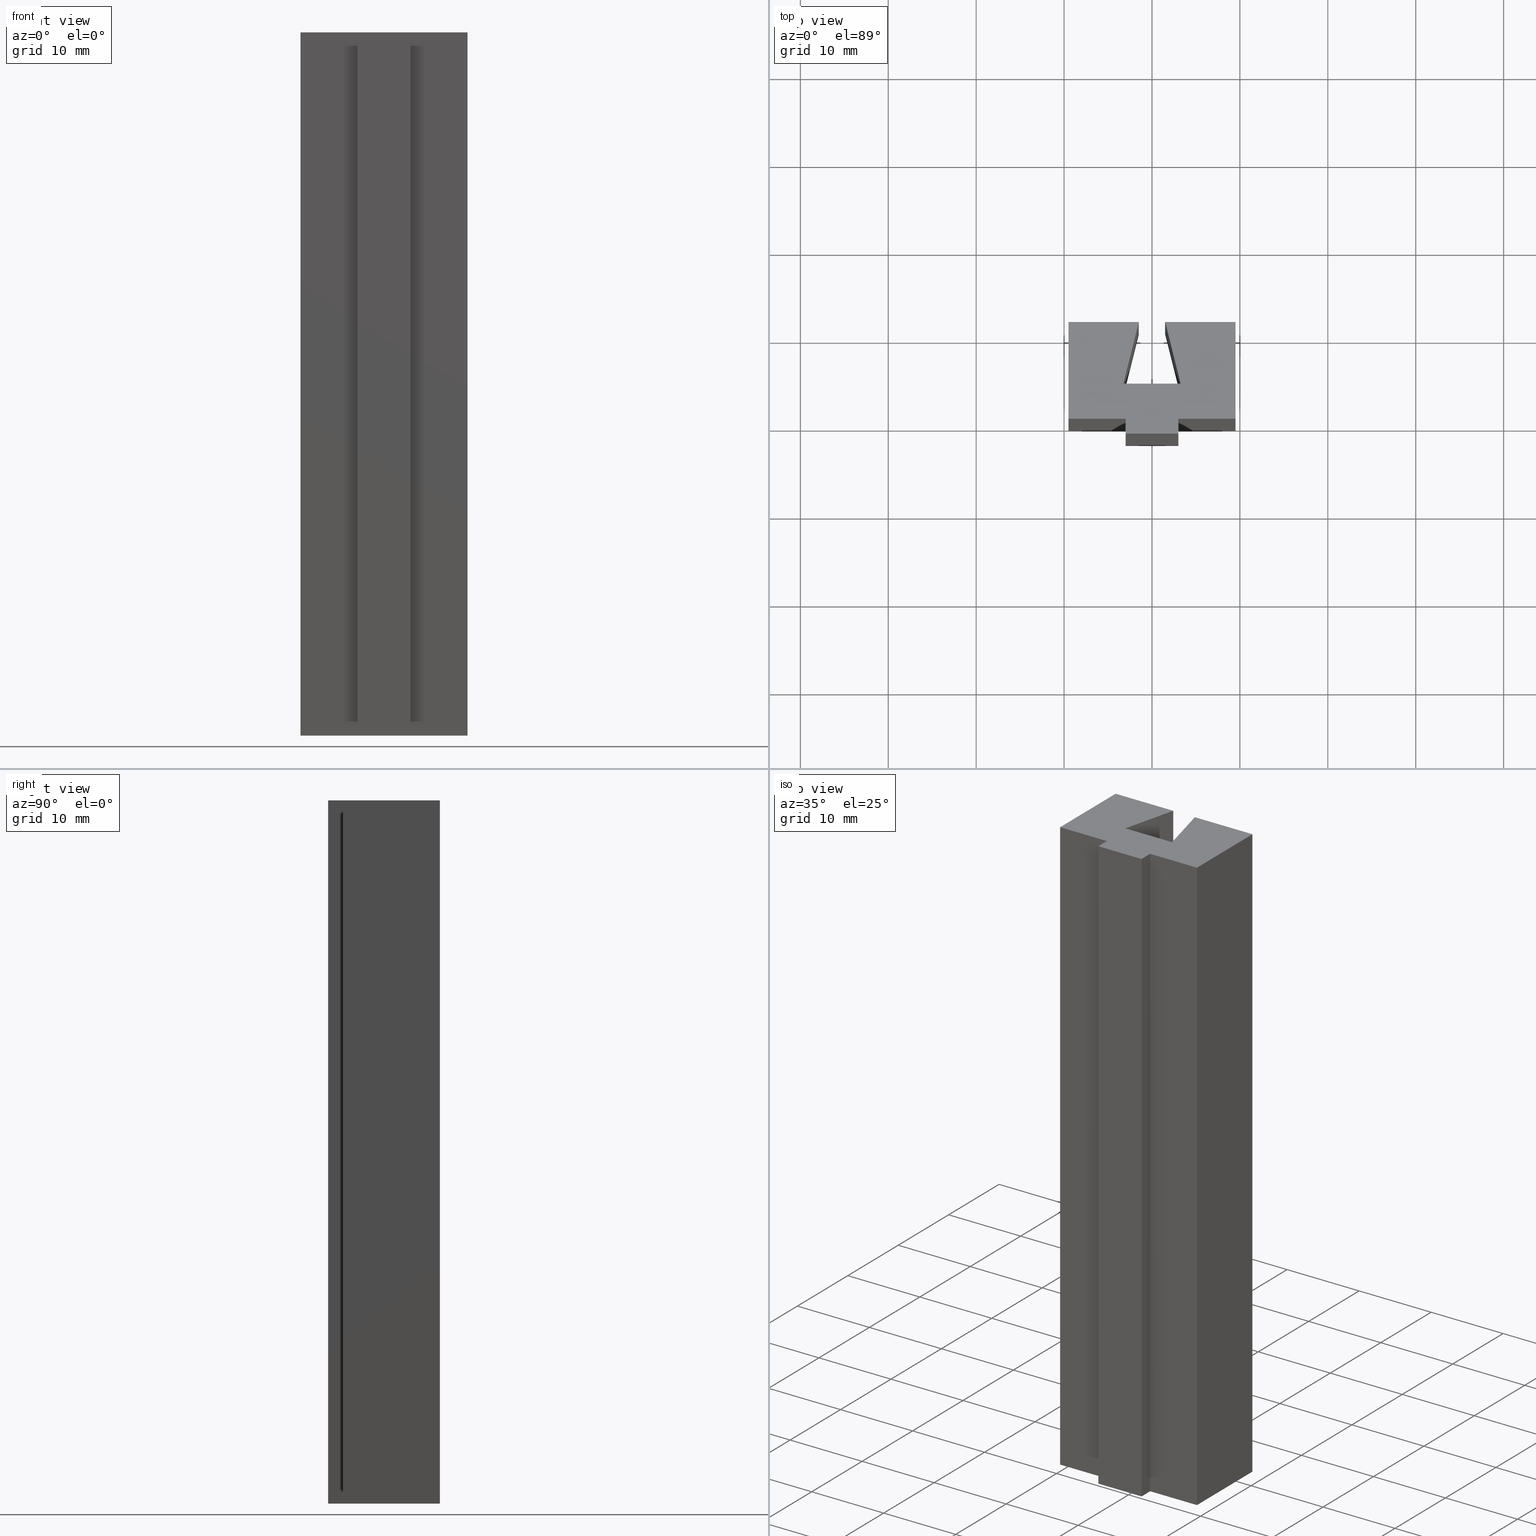
[diagram: canonical four-view strip — front | top / right | iso, engineering-drawing reading convention]
A machine part, canonical four-view strip (front | top / right | iso — engineering-drawing reading convention). The complete STEP part file that produces these views, byte-faithful:
ISO-10303-21;
HEADER;
/* Generated by software containing ST-Developer
 * from STEP Tools, Inc. (www.steptools.com) 
 */

FILE_DESCRIPTION(
/* description */ (''),
/* implementation_level */ '2;1');

FILE_NAME(
/* name */ 'E_3_01_10_07_00_WKZ-0135.stp',
/* time_stamp */ '2025-11-24T11:51:56+01:00',
/* author */ ('d.fischer'),
/* organization */ (''),
/* preprocessor_version */ 'ST-DEVELOPER v20',
/* originating_system */ 'Autodesk Inventor 2025',
/* authorisation */ '');

FILE_SCHEMA (('AUTOMOTIVE_DESIGN { 1 0 10303 214 3 1 1 }'));
ENDSEC;

DATA;
#10=MECHANICAL_DESIGN_GEOMETRIC_PRESENTATION_REPRESENTATION('',(#14,#15),
#457);
#11=SHAPE_REPRESENTATION_RELATIONSHIP('SRR','None',#464,#12);
#12=ADVANCED_BREP_SHAPE_REPRESENTATION('',(#13),#456);
#13=MANIFOLD_SOLID_BREP('Volumenk\X\F6rper1',#276);
#14=STYLED_ITEM('',(#474),#264);
#15=STYLED_ITEM('',(#473),#13);
#16=FACE_OUTER_BOUND('',#30,.T.);
#17=FACE_OUTER_BOUND('',#31,.T.);
#18=FACE_OUTER_BOUND('',#32,.T.);
#19=FACE_OUTER_BOUND('',#33,.T.);
#20=FACE_OUTER_BOUND('',#34,.T.);
#21=FACE_OUTER_BOUND('',#35,.T.);
#22=FACE_OUTER_BOUND('',#36,.T.);
#23=FACE_OUTER_BOUND('',#37,.T.);
#24=FACE_OUTER_BOUND('',#38,.T.);
#25=FACE_OUTER_BOUND('',#39,.T.);
#26=FACE_OUTER_BOUND('',#40,.T.);
#27=FACE_OUTER_BOUND('',#41,.T.);
#28=FACE_OUTER_BOUND('',#42,.T.);
#29=FACE_OUTER_BOUND('',#43,.T.);
#30=EDGE_LOOP('',(#176,#177,#178,#179,#180,#181,#182,#183,#184,#185,#186,
#187));
#31=EDGE_LOOP('',(#188,#189,#190,#191));
#32=EDGE_LOOP('',(#192,#193,#194,#195));
#33=EDGE_LOOP('',(#196,#197,#198,#199));
#34=EDGE_LOOP('',(#200,#201,#202,#203));
#35=EDGE_LOOP('',(#204,#205,#206,#207));
#36=EDGE_LOOP('',(#208,#209,#210,#211));
#37=EDGE_LOOP('',(#212,#213,#214,#215));
#38=EDGE_LOOP('',(#216,#217,#218,#219));
#39=EDGE_LOOP('',(#220,#221,#222,#223));
#40=EDGE_LOOP('',(#224,#225,#226,#227));
#41=EDGE_LOOP('',(#228,#229,#230,#231));
#42=EDGE_LOOP('',(#232,#233,#234,#235));
#43=EDGE_LOOP('',(#236,#237,#238,#239,#240,#241,#242,#243,#244,#245,#246,
#247));
#44=LINE('',#383,#80);
#45=LINE('',#385,#81);
#46=LINE('',#387,#82);
#47=LINE('',#389,#83);
#48=LINE('',#391,#84);
#49=LINE('',#393,#85);
#50=LINE('',#395,#86);
#51=LINE('',#397,#87);
#52=LINE('',#399,#88);
#53=LINE('',#401,#89);
#54=LINE('',#403,#90);
#55=LINE('',#404,#91);
#56=LINE('',#408,#92);
#57=LINE('',#409,#93);
#58=LINE('',#410,#94);
#59=LINE('',#413,#95);
#60=LINE('',#414,#96);
#61=LINE('',#417,#97);
#62=LINE('',#418,#98);
#63=LINE('',#421,#99);
#64=LINE('',#422,#100);
#65=LINE('',#425,#101);
#66=LINE('',#426,#102);
#67=LINE('',#429,#103);
#68=LINE('',#430,#104);
#69=LINE('',#433,#105);
#70=LINE('',#434,#106);
#71=LINE('',#437,#107);
#72=LINE('',#438,#108);
#73=LINE('',#441,#109);
#74=LINE('',#442,#110);
#75=LINE('',#445,#111);
#76=LINE('',#446,#112);
#77=LINE('',#449,#113);
#78=LINE('',#450,#114);
#79=LINE('',#452,#115);
#80=VECTOR('',#317,10.);
#81=VECTOR('',#318,10.);
#82=VECTOR('',#319,10.);
#83=VECTOR('',#320,10.);
#84=VECTOR('',#321,10.);
#85=VECTOR('',#322,10.);
#86=VECTOR('',#323,10.);
#87=VECTOR('',#324,10.);
#88=VECTOR('',#325,10.);
#89=VECTOR('',#326,10.);
#90=VECTOR('',#327,10.);
#91=VECTOR('',#328,10.);
#92=VECTOR('',#331,10.);
#93=VECTOR('',#332,10.);
#94=VECTOR('',#333,10.);
#95=VECTOR('',#336,10.);
#96=VECTOR('',#337,10.);
#97=VECTOR('',#340,10.);
#98=VECTOR('',#341,10.);
#99=VECTOR('',#344,10.);
#100=VECTOR('',#345,10.);
#101=VECTOR('',#348,10.);
#102=VECTOR('',#349,10.);
#103=VECTOR('',#352,10.);
#104=VECTOR('',#353,10.);
#105=VECTOR('',#356,10.);
#106=VECTOR('',#357,10.);
#107=VECTOR('',#360,10.);
#108=VECTOR('',#361,10.);
#109=VECTOR('',#364,10.);
#110=VECTOR('',#365,10.);
#111=VECTOR('',#368,10.);
#112=VECTOR('',#369,10.);
#113=VECTOR('',#372,10.);
#114=VECTOR('',#373,10.);
#115=VECTOR('',#376,10.);
#116=VERTEX_POINT('',#381);
#117=VERTEX_POINT('',#382);
#118=VERTEX_POINT('',#384);
#119=VERTEX_POINT('',#386);
#120=VERTEX_POINT('',#388);
#121=VERTEX_POINT('',#390);
#122=VERTEX_POINT('',#392);
#123=VERTEX_POINT('',#394);
#124=VERTEX_POINT('',#396);
#125=VERTEX_POINT('',#398);
#126=VERTEX_POINT('',#400);
#127=VERTEX_POINT('',#402);
#128=VERTEX_POINT('',#406);
#129=VERTEX_POINT('',#407);
#130=VERTEX_POINT('',#412);
#131=VERTEX_POINT('',#416);
#132=VERTEX_POINT('',#420);
#133=VERTEX_POINT('',#424);
#134=VERTEX_POINT('',#428);
#135=VERTEX_POINT('',#432);
#136=VERTEX_POINT('',#436);
#137=VERTEX_POINT('',#440);
#138=VERTEX_POINT('',#444);
#139=VERTEX_POINT('',#448);
#140=EDGE_CURVE('',#116,#117,#44,.T.);
#141=EDGE_CURVE('',#118,#116,#45,.T.);
#142=EDGE_CURVE('',#119,#118,#46,.T.);
#143=EDGE_CURVE('',#120,#119,#47,.T.);
#144=EDGE_CURVE('',#121,#120,#48,.T.);
#145=EDGE_CURVE('',#122,#121,#49,.T.);
#146=EDGE_CURVE('',#123,#122,#50,.T.);
#147=EDGE_CURVE('',#124,#123,#51,.T.);
#148=EDGE_CURVE('',#125,#124,#52,.T.);
#149=EDGE_CURVE('',#126,#125,#53,.T.);
#150=EDGE_CURVE('',#127,#126,#54,.T.);
#151=EDGE_CURVE('',#117,#127,#55,.T.);
#152=EDGE_CURVE('',#128,#129,#56,.T.);
#153=EDGE_CURVE('',#129,#119,#57,.T.);
#154=EDGE_CURVE('',#128,#118,#58,.T.);
#155=EDGE_CURVE('',#129,#130,#59,.T.);
#156=EDGE_CURVE('',#130,#120,#60,.T.);
#157=EDGE_CURVE('',#130,#131,#61,.T.);
#158=EDGE_CURVE('',#131,#121,#62,.T.);
#159=EDGE_CURVE('',#131,#132,#63,.T.);
#160=EDGE_CURVE('',#132,#122,#64,.T.);
#161=EDGE_CURVE('',#132,#133,#65,.T.);
#162=EDGE_CURVE('',#133,#123,#66,.T.);
#163=EDGE_CURVE('',#133,#134,#67,.T.);
#164=EDGE_CURVE('',#134,#124,#68,.T.);
#165=EDGE_CURVE('',#134,#135,#69,.T.);
#166=EDGE_CURVE('',#135,#125,#70,.T.);
#167=EDGE_CURVE('',#135,#136,#71,.T.);
#168=EDGE_CURVE('',#136,#126,#72,.T.);
#169=EDGE_CURVE('',#136,#137,#73,.T.);
#170=EDGE_CURVE('',#137,#127,#74,.T.);
#171=EDGE_CURVE('',#137,#138,#75,.T.);
#172=EDGE_CURVE('',#138,#117,#76,.T.);
#173=EDGE_CURVE('',#138,#139,#77,.T.);
#174=EDGE_CURVE('',#116,#139,#78,.T.);
#175=EDGE_CURVE('',#139,#128,#79,.T.);
#176=ORIENTED_EDGE('',*,*,#140,.F.);
#177=ORIENTED_EDGE('',*,*,#141,.F.);
#178=ORIENTED_EDGE('',*,*,#142,.F.);
#179=ORIENTED_EDGE('',*,*,#143,.F.);
#180=ORIENTED_EDGE('',*,*,#144,.F.);
#181=ORIENTED_EDGE('',*,*,#145,.F.);
#182=ORIENTED_EDGE('',*,*,#146,.F.);
#183=ORIENTED_EDGE('',*,*,#147,.F.);
#184=ORIENTED_EDGE('',*,*,#148,.F.);
#185=ORIENTED_EDGE('',*,*,#149,.F.);
#186=ORIENTED_EDGE('',*,*,#150,.F.);
#187=ORIENTED_EDGE('',*,*,#151,.F.);
#188=ORIENTED_EDGE('',*,*,#152,.T.);
#189=ORIENTED_EDGE('',*,*,#153,.T.);
#190=ORIENTED_EDGE('',*,*,#142,.T.);
#191=ORIENTED_EDGE('',*,*,#154,.F.);
#192=ORIENTED_EDGE('',*,*,#155,.T.);
#193=ORIENTED_EDGE('',*,*,#156,.T.);
#194=ORIENTED_EDGE('',*,*,#143,.T.);
#195=ORIENTED_EDGE('',*,*,#153,.F.);
#196=ORIENTED_EDGE('',*,*,#157,.T.);
#197=ORIENTED_EDGE('',*,*,#158,.T.);
#198=ORIENTED_EDGE('',*,*,#144,.T.);
#199=ORIENTED_EDGE('',*,*,#156,.F.);
#200=ORIENTED_EDGE('',*,*,#159,.T.);
#201=ORIENTED_EDGE('',*,*,#160,.T.);
#202=ORIENTED_EDGE('',*,*,#145,.T.);
#203=ORIENTED_EDGE('',*,*,#158,.F.);
#204=ORIENTED_EDGE('',*,*,#161,.T.);
#205=ORIENTED_EDGE('',*,*,#162,.T.);
#206=ORIENTED_EDGE('',*,*,#146,.T.);
#207=ORIENTED_EDGE('',*,*,#160,.F.);
#208=ORIENTED_EDGE('',*,*,#163,.T.);
#209=ORIENTED_EDGE('',*,*,#164,.T.);
#210=ORIENTED_EDGE('',*,*,#147,.T.);
#211=ORIENTED_EDGE('',*,*,#162,.F.);
#212=ORIENTED_EDGE('',*,*,#165,.T.);
#213=ORIENTED_EDGE('',*,*,#166,.T.);
#214=ORIENTED_EDGE('',*,*,#148,.T.);
#215=ORIENTED_EDGE('',*,*,#164,.F.);
#216=ORIENTED_EDGE('',*,*,#167,.T.);
#217=ORIENTED_EDGE('',*,*,#168,.T.);
#218=ORIENTED_EDGE('',*,*,#149,.T.);
#219=ORIENTED_EDGE('',*,*,#166,.F.);
#220=ORIENTED_EDGE('',*,*,#169,.T.);
#221=ORIENTED_EDGE('',*,*,#170,.T.);
#222=ORIENTED_EDGE('',*,*,#150,.T.);
#223=ORIENTED_EDGE('',*,*,#168,.F.);
#224=ORIENTED_EDGE('',*,*,#171,.T.);
#225=ORIENTED_EDGE('',*,*,#172,.T.);
#226=ORIENTED_EDGE('',*,*,#151,.T.);
#227=ORIENTED_EDGE('',*,*,#170,.F.);
#228=ORIENTED_EDGE('',*,*,#173,.T.);
#229=ORIENTED_EDGE('',*,*,#174,.F.);
#230=ORIENTED_EDGE('',*,*,#140,.T.);
#231=ORIENTED_EDGE('',*,*,#172,.F.);
#232=ORIENTED_EDGE('',*,*,#175,.T.);
#233=ORIENTED_EDGE('',*,*,#154,.T.);
#234=ORIENTED_EDGE('',*,*,#141,.T.);
#235=ORIENTED_EDGE('',*,*,#174,.T.);
#236=ORIENTED_EDGE('',*,*,#152,.F.);
#237=ORIENTED_EDGE('',*,*,#175,.F.);
#238=ORIENTED_EDGE('',*,*,#173,.F.);
#239=ORIENTED_EDGE('',*,*,#171,.F.);
#240=ORIENTED_EDGE('',*,*,#169,.F.);
#241=ORIENTED_EDGE('',*,*,#167,.F.);
#242=ORIENTED_EDGE('',*,*,#165,.F.);
#243=ORIENTED_EDGE('',*,*,#163,.F.);
#244=ORIENTED_EDGE('',*,*,#161,.F.);
#245=ORIENTED_EDGE('',*,*,#159,.F.);
#246=ORIENTED_EDGE('',*,*,#157,.F.);
#247=ORIENTED_EDGE('',*,*,#155,.F.);
#248=PLANE('',#299);
#249=PLANE('',#300);
#250=PLANE('',#301);
#251=PLANE('',#302);
#252=PLANE('',#303);
#253=PLANE('',#304);
#254=PLANE('',#305);
#255=PLANE('',#306);
#256=PLANE('',#307);
#257=PLANE('',#308);
#258=PLANE('',#309);
#259=PLANE('',#310);
#260=PLANE('',#311);
#261=PLANE('',#312);
#262=ADVANCED_FACE('',(#16),#248,.F.);
#263=ADVANCED_FACE('',(#17),#249,.T.);
#264=ADVANCED_FACE('',(#18),#250,.T.);
#265=ADVANCED_FACE('',(#19),#251,.T.);
#266=ADVANCED_FACE('',(#20),#252,.T.);
#267=ADVANCED_FACE('',(#21),#253,.T.);
#268=ADVANCED_FACE('',(#22),#254,.T.);
#269=ADVANCED_FACE('',(#23),#255,.T.);
#270=ADVANCED_FACE('',(#24),#256,.T.);
#271=ADVANCED_FACE('',(#25),#257,.T.);
#272=ADVANCED_FACE('',(#26),#258,.T.);
#273=ADVANCED_FACE('',(#27),#259,.T.);
#274=ADVANCED_FACE('',(#28),#260,.T.);
#275=ADVANCED_FACE('',(#29),#261,.T.);
#276=CLOSED_SHELL('',(#262,#263,#264,#265,#266,#267,#268,#269,#270,#271,
#272,#273,#274,#275));
#277=DERIVED_UNIT_ELEMENT(#280,1.);
#278=DERIVED_UNIT_ELEMENT(#459,-3.);
#279=DIMENSIONAL_EXPONENTS(0.,1.,0.,0.,0.,0.,0.);
#280=(
CONVERSION_BASED_UNIT('gram',#282)
MASS_UNIT()
NAMED_UNIT(#279)
);
#281=(
MASS_UNIT()
NAMED_UNIT(*)
SI_UNIT(.KILO.,.GRAM.)
);
#282=MASS_MEASURE_WITH_UNIT(MASS_MEASURE(0.001),#281);
#283=DERIVED_UNIT((#277,#278));
#284=MEASURE_REPRESENTATION_ITEM('density measure',
POSITIVE_RATIO_MEASURE(8.03),#283);
#285=PROPERTY_DEFINITION_REPRESENTATION(#290,#287);
#286=PROPERTY_DEFINITION_REPRESENTATION(#291,#288);
#287=REPRESENTATION('material name',(#289),#456);
#288=REPRESENTATION('density',(#284),#456);
#289=DESCRIPTIVE_REPRESENTATION_ITEM('1.4301','1.4301');
#290=PROPERTY_DEFINITION('material property','material name',#466);
#291=PROPERTY_DEFINITION('material property','density of part',#466);
#292=DATE_TIME_ROLE('creation_date');
#293=APPLIED_DATE_AND_TIME_ASSIGNMENT(#294,#292,(#466));
#294=DATE_AND_TIME(#295,#296);
#295=CALENDAR_DATE(2011,18,10);
#296=LOCAL_TIME(0,0,0.,#297);
#297=COORDINATED_UNIVERSAL_TIME_OFFSET(0,0,.BEHIND.);
#298=AXIS2_PLACEMENT_3D('',#379,#313,#314);
#299=AXIS2_PLACEMENT_3D('',#380,#315,#316);
#300=AXIS2_PLACEMENT_3D('',#405,#329,#330);
#301=AXIS2_PLACEMENT_3D('',#411,#334,#335);
#302=AXIS2_PLACEMENT_3D('',#415,#338,#339);
#303=AXIS2_PLACEMENT_3D('',#419,#342,#343);
#304=AXIS2_PLACEMENT_3D('',#423,#346,#347);
#305=AXIS2_PLACEMENT_3D('',#427,#350,#351);
#306=AXIS2_PLACEMENT_3D('',#431,#354,#355);
#307=AXIS2_PLACEMENT_3D('',#435,#358,#359);
#308=AXIS2_PLACEMENT_3D('',#439,#362,#363);
#309=AXIS2_PLACEMENT_3D('',#443,#366,#367);
#310=AXIS2_PLACEMENT_3D('',#447,#370,#371);
#311=AXIS2_PLACEMENT_3D('',#451,#374,#375);
#312=AXIS2_PLACEMENT_3D('',#453,#377,#378);
#313=DIRECTION('axis',(0.,0.,1.));
#314=DIRECTION('refdir',(1.,0.,0.));
#315=DIRECTION('center_axis',(0.,0.,1.));
#316=DIRECTION('ref_axis',(1.,0.,0.));
#317=DIRECTION('',(0.,1.,0.));
#318=DIRECTION('',(1.,-5.11511478940699E-16,0.));
#319=DIRECTION('',(1.30614473485312E-15,1.,0.));
#320=DIRECTION('',(1.,0.,0.));
#321=DIRECTION('',(1.30614473485312E-15,-1.,0.));
#322=DIRECTION('',(1.,5.11511478940699E-16,0.));
#323=DIRECTION('',(0.,-1.,0.));
#324=DIRECTION('',(-1.,-2.77555756156289E-16,0.));
#325=DIRECTION('',(0.242535625036333,0.970142500145332,0.));
#326=DIRECTION('',(-1.,0.,0.));
#327=DIRECTION('',(0.242535625036333,-0.970142500145332,0.));
#328=DIRECTION('',(-1.,2.77555756156289E-16,0.));
#329=DIRECTION('center_axis',(1.,-1.30614473485312E-15,0.));
#330=DIRECTION('ref_axis',(0.,0.,-1.));
#331=DIRECTION('',(-1.30614473485312E-15,-1.,0.));
#332=DIRECTION('',(0.,0.,-1.));
#333=DIRECTION('',(0.,0.,-1.));
#334=DIRECTION('center_axis',(0.,-1.,0.));
#335=DIRECTION('ref_axis',(0.,0.,-1.));
#336=DIRECTION('',(-1.,0.,0.));
#337=DIRECTION('',(0.,0.,-1.));
#338=DIRECTION('center_axis',(-1.,-1.30614473485312E-15,0.));
#339=DIRECTION('ref_axis',(0.,0.,1.));
#340=DIRECTION('',(-1.30614473485312E-15,1.,0.));
#341=DIRECTION('',(0.,0.,-1.));
#342=DIRECTION('center_axis',(5.11511478940699E-16,-1.,0.));
#343=DIRECTION('ref_axis',(0.,0.,-1.));
#344=DIRECTION('',(-1.,-5.11511478940699E-16,0.));
#345=DIRECTION('',(0.,0.,-1.));
#346=DIRECTION('center_axis',(-1.,0.,0.));
#347=DIRECTION('ref_axis',(0.,0.,1.));
#348=DIRECTION('',(0.,1.,0.));
#349=DIRECTION('',(0.,0.,-1.));
#350=DIRECTION('center_axis',(-2.77555756156289E-16,1.,0.));
#351=DIRECTION('ref_axis',(0.,0.,1.));
#352=DIRECTION('',(1.,2.77555756156289E-16,0.));
#353=DIRECTION('',(0.,0.,-1.));
#354=DIRECTION('center_axis',(0.970142500145332,-0.242535625036333,0.));
#355=DIRECTION('ref_axis',(0.,0.,-1.));
#356=DIRECTION('',(-0.242535625036333,-0.970142500145332,0.));
#357=DIRECTION('',(0.,0.,-1.));
#358=DIRECTION('center_axis',(0.,1.,0.));
#359=DIRECTION('ref_axis',(0.,0.,1.));
#360=DIRECTION('',(1.,0.,0.));
#361=DIRECTION('',(0.,0.,-1.));
#362=DIRECTION('center_axis',(-0.970142500145332,-0.242535625036333,0.));
#363=DIRECTION('ref_axis',(0.,0.,1.));
#364=DIRECTION('',(-0.242535625036333,0.970142500145332,0.));
#365=DIRECTION('',(0.,0.,-1.));
#366=DIRECTION('center_axis',(2.77555756156289E-16,1.,0.));
#367=DIRECTION('ref_axis',(0.,0.,1.));
#368=DIRECTION('',(1.,-2.77555756156289E-16,0.));
#369=DIRECTION('',(0.,0.,-1.));
#370=DIRECTION('center_axis',(1.,0.,0.));
#371=DIRECTION('ref_axis',(0.,0.,-1.));
#372=DIRECTION('',(0.,-1.,0.));
#373=DIRECTION('',(0.,0.,1.));
#374=DIRECTION('center_axis',(-5.11511478940699E-16,-1.,0.));
#375=DIRECTION('ref_axis',(0.,0.,-1.));
#376=DIRECTION('',(-1.,5.11511478940699E-16,0.));
#377=DIRECTION('center_axis',(0.,0.,1.));
#378=DIRECTION('ref_axis',(1.,0.,0.));
#379=CARTESIAN_POINT('',(0.,0.,0.));
#380=CARTESIAN_POINT('Origin',(0.,5.14124002691705,-40.));
#381=CARTESIAN_POINT('',(9.50000000000001,0.,-40.));
#382=CARTESIAN_POINT('',(9.50000000000001,11.,-40.));
#383=CARTESIAN_POINT('',(9.50000000000001,11.,-40.));
#384=CARTESIAN_POINT('',(3.,3.32482461311454E-15,-40.));
#385=CARTESIAN_POINT('',(9.50000000000001,0.,-40.));
#386=CARTESIAN_POINT('',(3.,-1.7,-40.));
#387=CARTESIAN_POINT('',(3.,3.32482461311454E-15,-40.));
#388=CARTESIAN_POINT('',(-3.,-1.7,-40.));
#389=CARTESIAN_POINT('',(3.,-1.7,-40.));
#390=CARTESIAN_POINT('',(-3.,3.32482461311454E-15,-40.));
#391=CARTESIAN_POINT('',(-3.,-1.7,-40.));
#392=CARTESIAN_POINT('',(-9.50000000000001,0.,-40.));
#393=CARTESIAN_POINT('',(-3.,3.32482461311454E-15,-40.));
#394=CARTESIAN_POINT('',(-9.50000000000001,11.,-40.));
#395=CARTESIAN_POINT('',(-9.50000000000001,0.,-40.));
#396=CARTESIAN_POINT('',(-1.5,11.,-40.));
#397=CARTESIAN_POINT('',(-9.50000000000001,11.,-40.));
#398=CARTESIAN_POINT('',(-3.25,4.,-40.));
#399=CARTESIAN_POINT('',(-1.5,11.,-40.));
#400=CARTESIAN_POINT('',(3.25,4.,-40.));
#401=CARTESIAN_POINT('',(-3.25,4.,-40.));
#402=CARTESIAN_POINT('',(1.5,11.,-40.));
#403=CARTESIAN_POINT('',(3.25,4.,-40.));
#404=CARTESIAN_POINT('',(1.5,11.,-40.));
#405=CARTESIAN_POINT('Origin',(3.,3.32482461311454E-15,0.));
#406=CARTESIAN_POINT('',(3.,3.32482461311454E-15,40.));
#407=CARTESIAN_POINT('',(3.,-1.7,40.));
#408=CARTESIAN_POINT('',(3.,3.32482461311454E-15,40.));
#409=CARTESIAN_POINT('',(3.,-1.7,0.));
#410=CARTESIAN_POINT('',(3.,3.32482461311454E-15,0.));
#411=CARTESIAN_POINT('Origin',(3.,-1.7,0.));
#412=CARTESIAN_POINT('',(-3.,-1.7,40.));
#413=CARTESIAN_POINT('',(3.,-1.7,40.));
#414=CARTESIAN_POINT('',(-3.,-1.7,0.));
#415=CARTESIAN_POINT('Origin',(-3.,-1.7,0.));
#416=CARTESIAN_POINT('',(-3.,3.32482461311454E-15,40.));
#417=CARTESIAN_POINT('',(-3.,-1.7,40.));
#418=CARTESIAN_POINT('',(-3.,3.32482461311454E-15,0.));
#419=CARTESIAN_POINT('Origin',(-3.,3.32482461311454E-15,0.));
#420=CARTESIAN_POINT('',(-9.50000000000001,0.,40.));
#421=CARTESIAN_POINT('',(-3.,3.32482461311454E-15,40.));
#422=CARTESIAN_POINT('',(-9.50000000000001,0.,0.));
#423=CARTESIAN_POINT('Origin',(-9.50000000000001,0.,0.));
#424=CARTESIAN_POINT('',(-9.50000000000001,11.,40.));
#425=CARTESIAN_POINT('',(-9.50000000000001,0.,40.));
#426=CARTESIAN_POINT('',(-9.50000000000001,11.,0.));
#427=CARTESIAN_POINT('Origin',(-9.50000000000001,11.,0.));
#428=CARTESIAN_POINT('',(-1.5,11.,40.));
#429=CARTESIAN_POINT('',(-9.50000000000001,11.,40.));
#430=CARTESIAN_POINT('',(-1.5,11.,0.));
#431=CARTESIAN_POINT('Origin',(-1.5,11.,0.));
#432=CARTESIAN_POINT('',(-3.25,4.,40.));
#433=CARTESIAN_POINT('',(-1.5,11.,40.));
#434=CARTESIAN_POINT('',(-3.25,4.,0.));
#435=CARTESIAN_POINT('Origin',(-3.25,4.,0.));
#436=CARTESIAN_POINT('',(3.25,4.,40.));
#437=CARTESIAN_POINT('',(-3.25,4.,40.));
#438=CARTESIAN_POINT('',(3.25,4.,0.));
#439=CARTESIAN_POINT('Origin',(3.25,4.,0.));
#440=CARTESIAN_POINT('',(1.5,11.,40.));
#441=CARTESIAN_POINT('',(3.25,4.,40.));
#442=CARTESIAN_POINT('',(1.5,11.,0.));
#443=CARTESIAN_POINT('Origin',(1.5,11.,0.));
#444=CARTESIAN_POINT('',(9.50000000000001,11.,40.));
#445=CARTESIAN_POINT('',(1.5,11.,40.));
#446=CARTESIAN_POINT('',(9.50000000000001,11.,0.));
#447=CARTESIAN_POINT('Origin',(9.50000000000001,11.,0.));
#448=CARTESIAN_POINT('',(9.50000000000001,0.,40.));
#449=CARTESIAN_POINT('',(9.50000000000001,11.,40.));
#450=CARTESIAN_POINT('',(9.50000000000001,0.,0.));
#451=CARTESIAN_POINT('Origin',(9.50000000000001,0.,0.));
#452=CARTESIAN_POINT('',(9.50000000000001,0.,40.));
#453=CARTESIAN_POINT('Origin',(6.76542155630955E-16,5.14124002691705,40.));
#454=UNCERTAINTY_MEASURE_WITH_UNIT(LENGTH_MEASURE(0.01),#458,
'DISTANCE_ACCURACY_VALUE',
'Maximum model space distance between geometric entities at asserted c
onnectivities');
#455=UNCERTAINTY_MEASURE_WITH_UNIT(LENGTH_MEASURE(0.01),#458,
'DISTANCE_ACCURACY_VALUE',
'Maximum model space distance between geometric entities at asserted c
onnectivities');
#456=(
GEOMETRIC_REPRESENTATION_CONTEXT(3)
GLOBAL_UNCERTAINTY_ASSIGNED_CONTEXT((#454))
GLOBAL_UNIT_ASSIGNED_CONTEXT((#458,#460,#461))
REPRESENTATION_CONTEXT('','3D')
);
#457=(
GEOMETRIC_REPRESENTATION_CONTEXT(3)
GLOBAL_UNCERTAINTY_ASSIGNED_CONTEXT((#455))
GLOBAL_UNIT_ASSIGNED_CONTEXT((#458,#460,#461))
REPRESENTATION_CONTEXT('','3D')
);
#458=(
LENGTH_UNIT()
NAMED_UNIT(*)
SI_UNIT(.MILLI.,.METRE.)
);
#459=(
LENGTH_UNIT()
NAMED_UNIT(*)
SI_UNIT(.CENTI.,.METRE.)
);
#460=(
NAMED_UNIT(*)
PLANE_ANGLE_UNIT()
SI_UNIT($,.RADIAN.)
);
#461=(
NAMED_UNIT(*)
SI_UNIT($,.STERADIAN.)
SOLID_ANGLE_UNIT()
);
#462=SHAPE_DEFINITION_REPRESENTATION(#463,#464);
#463=PRODUCT_DEFINITION_SHAPE('',$,#466);
#464=SHAPE_REPRESENTATION('',(#298),#456);
#465=PRODUCT_DEFINITION_CONTEXT('part definition',#470,'design');
#466=PRODUCT_DEFINITION('WKZ-0135','E_3_01_10_07_00_WKZ-0135',#467,#465);
#467=PRODUCT_DEFINITION_FORMATION('',$,#472);
#468=PRODUCT_RELATED_PRODUCT_CATEGORY('E_3_01_10_07_00_WKZ-0135',
'E_3_01_10_07_00_WKZ-0135',(#472));
#469=APPLICATION_PROTOCOL_DEFINITION('international standard',
'automotive_design',2009,#470);
#470=APPLICATION_CONTEXT(
'Core Data for Automotive Mechanical Design Process');
#471=PRODUCT_CONTEXT('part definition',#470,'mechanical');
#472=PRODUCT('WKZ-0135','E_3_01_10_07_00_WKZ-0135',$,(#471));
#473=PRESENTATION_STYLE_ASSIGNMENT((#475));
#474=PRESENTATION_STYLE_ASSIGNMENT((#476));
#475=SURFACE_STYLE_USAGE(.BOTH.,#479);
#476=SURFACE_STYLE_USAGE(.BOTH.,#480);
#477=SURFACE_STYLE_RENDERING_WITH_PROPERTIES($,#487,(#478));
#478=SURFACE_STYLE_TRANSPARENT(0.);
#479=SURFACE_SIDE_STYLE('',(#481,#477));
#480=SURFACE_SIDE_STYLE('',(#482));
#481=SURFACE_STYLE_FILL_AREA(#483);
#482=SURFACE_STYLE_FILL_AREA(#484);
#483=FILL_AREA_STYLE('',(#485));
#484=FILL_AREA_STYLE('',(#486));
#485=FILL_AREA_STYLE_COLOUR('',#487);
#486=FILL_AREA_STYLE_COLOUR('',#488);
#487=COLOUR_RGB('',0.92156862745098,0.92156862745098,0.92156862745098);
#488=COLOUR_RGB('',0.16078431372549,0.16078431372549,0.16078431372549);
ENDSEC;
END-ISO-10303-21;
